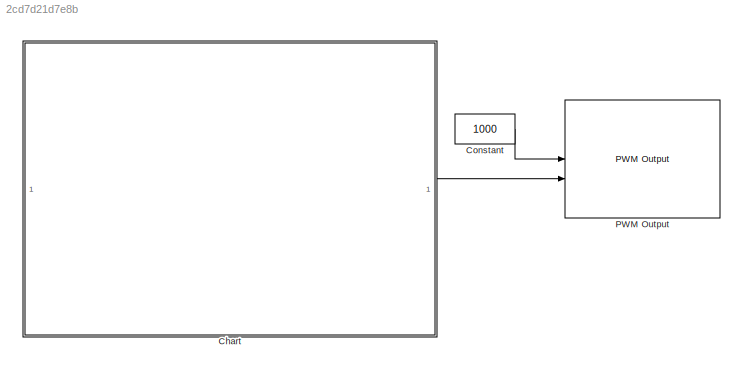
MODEL slx_2cd7d21d7e8b
KIND model
CONFIG AbsTol = auto
CONFIG EnableMultiTasking = on
CONFIG FixedStep = 0.1
CONFIG MaxStep = auto
CONFIG MinStep = auto
CONFIG RelTol = 1e-3
CONFIG SampleTimeConstraint = Unconstrained
CONFIG SolverName = FixedStepDiscrete
CONFIG StartTime = 0.0
CONFIG StopTime = 10.0
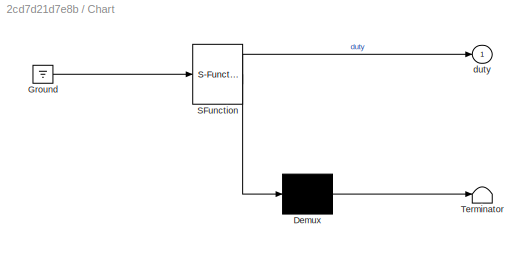
BLOCK [SubSystem] Chart
  ErrorFcn = Stateflow.Translate.translate
  PermitHierarchicalResolution = ExplicitOnly
  SFBlockType = Chart
  TreatAsAtomicUnit = on
BLOCK [Demux] Chart/ Demux 
  Outputs = 1
BLOCK [Ground] Chart/ Ground 
BLOCK [S-Function] Chart/ SFunction 
  EnableBusSupport = on
  FunctionName = sf_sfun
  PortCounts = [1 2]
  SFcnIsStateOwnerBlock = off
  SFunctionDeploymentMode = off
  Tag = Stateflow S-Function 3
BLOCK [Terminator] Chart/ Terminator 
BLOCK [Outport] Chart/duty
BLOCK [Constant] Constant
  Value = 1000
BLOCK [Reference] PWM Output  REF=stm32g4xxblockslib/PWM Output
  SourceBlock = stm32g4xxblockslib/PWM Output
  SourceType = stm32cube.blocks.PWMOutput
LINE Chart:1 -> PWM Output:2
LINE Constant:1 -> PWM Output:1
CHART Chart states=4 transitions=5
  STATE_LABEL 'OFF\nen: duty = 0;'
  STATE_LABEL 'LOW\nen: duty = 30;'
  STATE_LABEL 'HIGH\nen: duty = 100;'
  STATE_LABEL 'MEDIUM\nen: duty = 60;'
CHART  states=0 transitions=0
